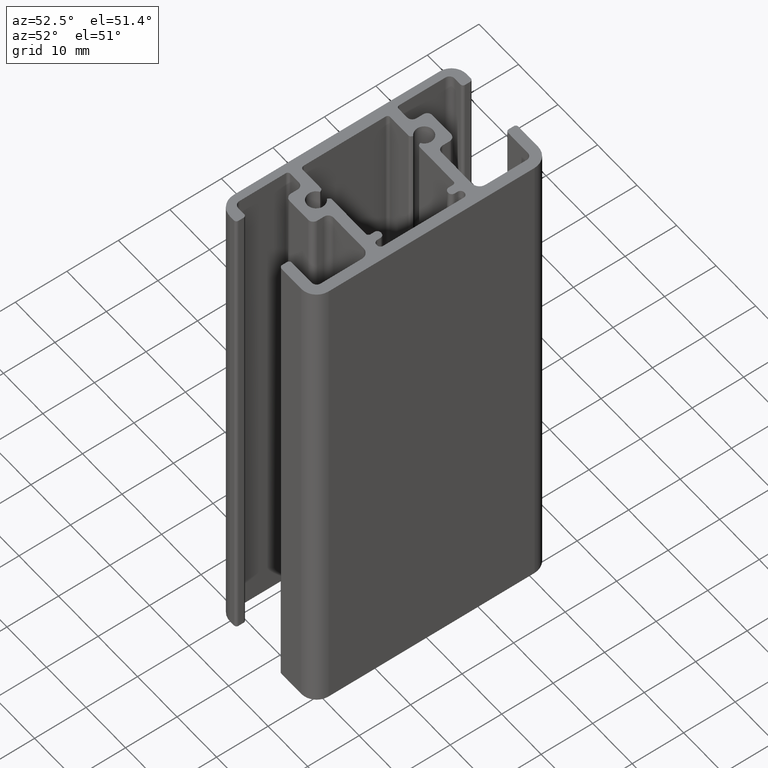
[diagram: clean part render]
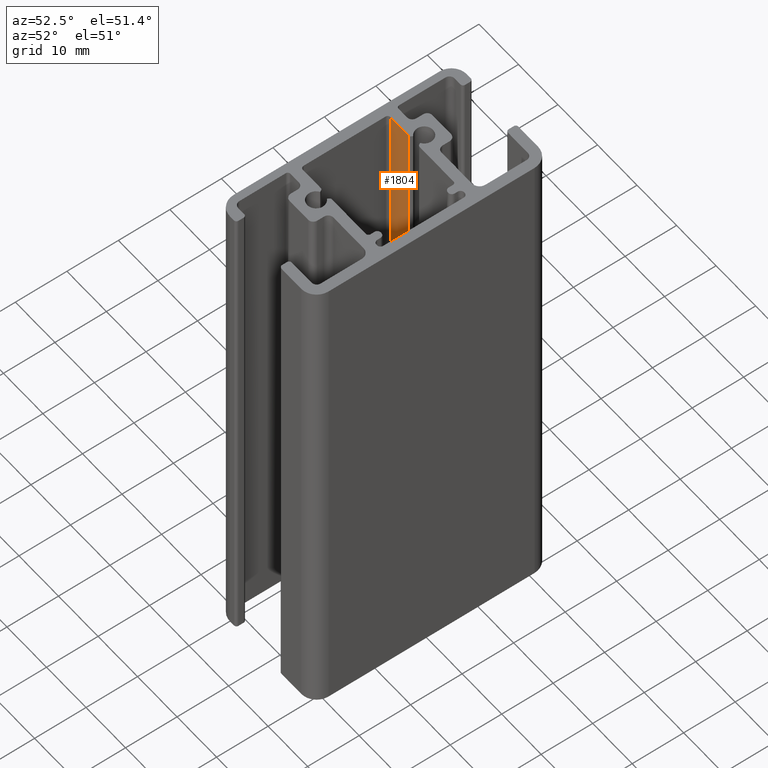
[diagram: same view with one face highlighted and labeled with its STEP entity id]
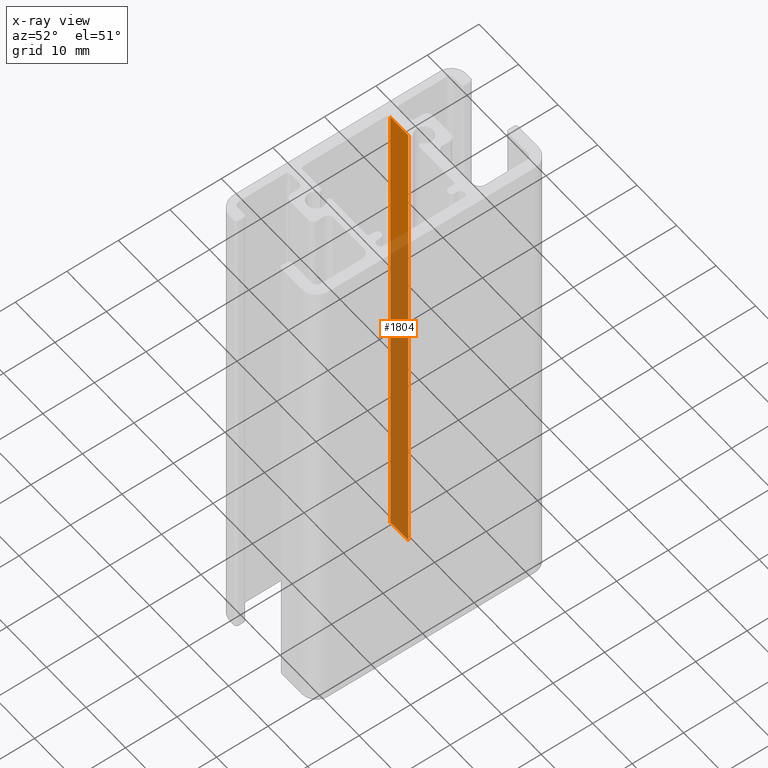
[diagram: x-ray of the same camera — body ghosted, the highlighted face saturated]
A machine part, auxiliary view. The second image highlights one B-rep face of the part: STEP entity #1804.
The next image is the same camera in x-ray: the body ghosted, the highlighted face saturated — about 73% of this face is hidden behind the body in this view.
In plain terms, the highlighted planar face has unit normal (0, 1, 0).
Its self-contained STEP definition (entity closure, byte-faithful):
#32=PLANE('',#1932);
#96=FACE_OUTER_BOUND('',#190,.T.);
#190=EDGE_LOOP('',(#1299,#1300,#1301,#1302));
#316=LINE('',#2801,#500);
#317=LINE('',#2805,#501);
#318=LINE('',#2807,#502);
#319=LINE('',#2808,#503);
#500=VECTOR('',#2242,100.);
#501=VECTOR('',#2247,4.55665356811626);
#502=VECTOR('',#2248,100.);
#503=VECTOR('',#2249,4.55665356811626);
#777=VERTEX_POINT('',#2798);
#778=VERTEX_POINT('',#2800);
#779=VERTEX_POINT('',#2804);
#780=VERTEX_POINT('',#2806);
#991=EDGE_CURVE('',#777,#778,#316,.T.);
#993=EDGE_CURVE('',#779,#777,#317,.T.);
#994=EDGE_CURVE('',#779,#780,#318,.T.);
#995=EDGE_CURVE('',#778,#780,#319,.T.);
#1299=ORIENTED_EDGE('',*,*,#993,.F.);
#1300=ORIENTED_EDGE('',*,*,#994,.T.);
#1301=ORIENTED_EDGE('',*,*,#995,.F.);
#1302=ORIENTED_EDGE('',*,*,#991,.F.);
#1804=ADVANCED_FACE('',(#96),#32,.F.);
#1932=AXIS2_PLACEMENT_3D('',#2803,#2245,#2246);
#2242=DIRECTION('',(0.,0.,1.));
#2245=DIRECTION('center_axis',(0.,1.,0.));
#2246=DIRECTION('ref_axis',(-1.,0.,0.));
#2247=DIRECTION('',(-1.,0.,0.));
#2248=DIRECTION('',(0.,0.,1.));
#2249=DIRECTION('',(1.,0.,0.));
#2798=CARTESIAN_POINT('',(-9.39995222211498,8.59987980868886,0.));
#2800=CARTESIAN_POINT('',(-9.39995222211498,8.59987980868886,100.));
#2801=CARTESIAN_POINT('',(-9.39995222211498,8.59987980868886,0.));
#2803=CARTESIAN_POINT('Origin',(-4.84329865399872,8.59987980868886,0.));
#2804=CARTESIAN_POINT('',(-4.84329865399872,8.59987980868886,0.));
#2805=CARTESIAN_POINT('',(-2.34805939246982,8.59987980868886,0.));
#2806=CARTESIAN_POINT('',(-4.84329865399872,8.59987980868886,100.));
#2807=CARTESIAN_POINT('',(-4.84329865399872,8.59987980868886,0.));
#2808=CARTESIAN_POINT('',(-2.34805939246982,8.59987980868886,100.));